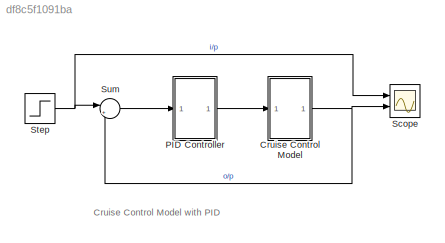
MODEL slx_df8c5f1091ba
KIND model
CONFIG AbsTol = auto
CONFIG EnableMultiTasking = off
CONFIG FixedStep = 0.01
CONFIG MaxStep = auto
CONFIG MinStep = auto
CONFIG RelTol = 1e-3
CONFIG SampleTimeConstraint = Unconstrained
CONFIG SolverName = VariableStepAuto
CONFIG StartTime = 0.0
CONFIG StopTime = 120
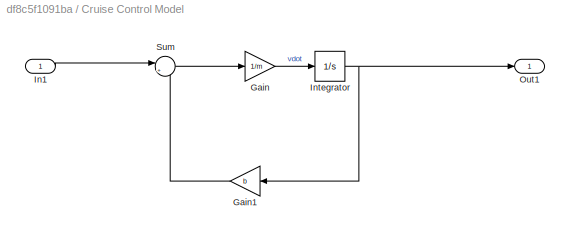
BLOCK [SubSystem] Cruise Control Model
  Ports = [1, 1]
  RequestExecContextInheritance = off
BLOCK [Gain] Cruise Control Model/Gain
  Gain = 1/m
BLOCK [Gain] Cruise Control Model/Gain1
  Gain = b
  NameLocation = top
BLOCK [Inport] Cruise Control Model/In1
BLOCK [Integrator] Cruise Control Model/Integrator
  Ports = [1, 1]
BLOCK [Outport] Cruise Control Model/Out1
BLOCK [Sum] Cruise Control Model/Sum
  Inputs = |+-
  Ports = [2, 1]
BLOCK [ModelReference] PID Controller
  ModelNameDialog = PID_Controller.slx
  ModelReferenceVersion = 1.6
  Ports = [1, 1]
BLOCK [Scope] Scope
  Floating = off
  NumInputPorts = 2
  Ports = [2]
  ScopeSpecificationString = Simulink.scopes.TimeScopeBlockCfg('CurrentConfiguration', extmgr.ConfigurationSet(extmgr.Configuration('Core','General UI',true),extmgr.Configuration('Core','Source UI',true),extmgr.Configuration('Sources','WiredSimulink',true),extmgr.Configuration('Visuals','Time Domain',true,'SerializedDisplays',{struct('MinYLimReal','-64.34571','MaxYLimReal','579.11139','YLabelReal','','MinYLimMag','0.00000','M...<+1410ch>
BLOCK [Step] Step
  After = u
  SampleTime = 0
  Time = 0
BLOCK [Sum] Sum
  Inputs = |+-
  Ports = [2, 1]
ANNOTATION (root): Cruise Control Model with PID
LINE Cruise Control Model/Gain1:1 -> Cruise Control Model/Sum:2
LINE Cruise Control Model/Gain:1 -> Cruise Control Model/Integrator:1
LINE Cruise Control Model/In1:1 -> Cruise Control Model/Sum:1
NET Cruise Control Model/Integrator:1 -> Cruise Control Model/Gain1:1, Cruise Control Model/Out1:1
LINE Cruise Control Model/Sum:1 -> Cruise Control Model/Gain:1
NET Cruise Control Model:1 -> Scope:2, Sum:2
LINE PID Controller:1 -> Cruise Control Model:1
NET Step:1 -> Scope:1, Sum:1
LINE Sum:1 -> PID Controller:1
note: NET lines group one-source signal fan-out (src -> all destinations, sorted); 1:1 wires keep LINE
